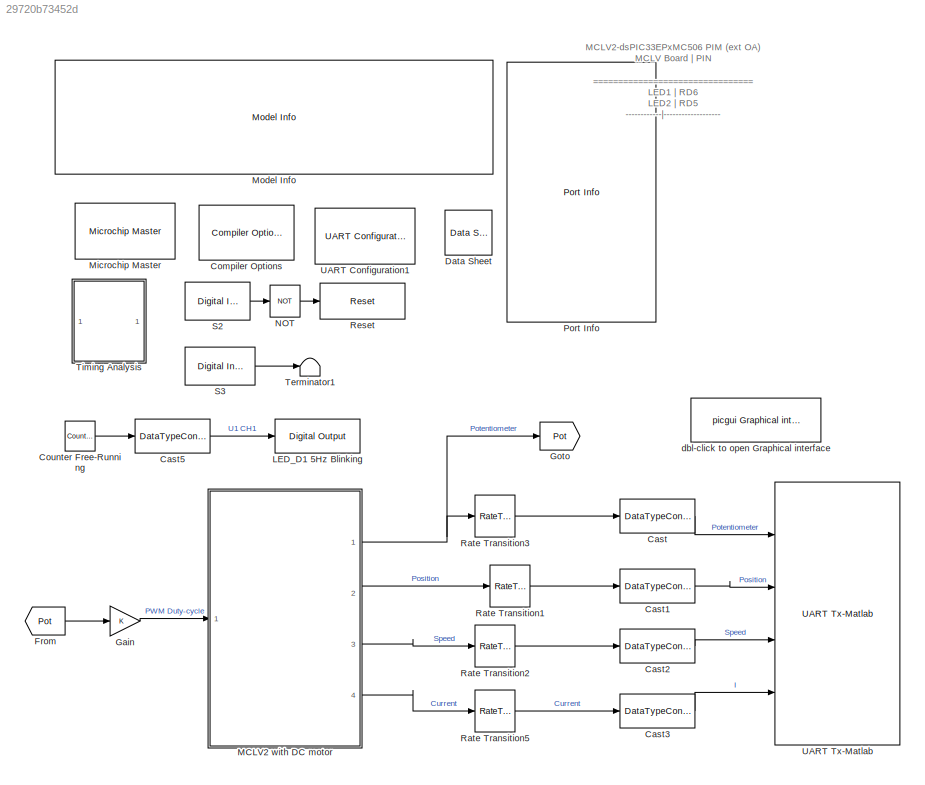
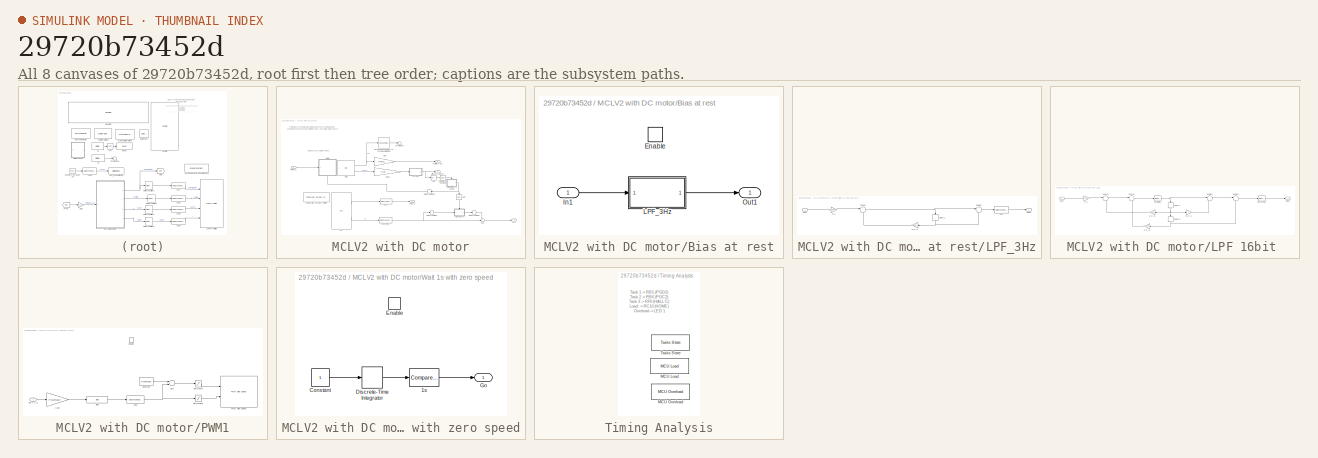
[diagram: thumbnail index - all 8 canvases of the model, root first then tree order]
MODEL slx_29720b73452d
KIND model
CONFIG AbsTol = auto
CONFIG EnableMultiTasking = on
CONFIG FixedStep = 50e-6
CONFIG MaxStep = auto
CONFIG MinStep = auto
CONFIG RelTol = 1e-3
CONFIG SampleTimeConstraint = Unconstrained
CONFIG Solver = FixedStepDiscrete
CONFIG SolverName = FixedStepDiscrete
CONFIG StartTime = 0.0
CONFIG StopTime = inf
BLOCK [DataTypeConversion] Cast
  OutDataTypeStr = single
  RndMeth = Floor
  SaturateOnIntegerOverflow = off
BLOCK [DataTypeConversion] Cast1
  OutDataTypeStr = single
  RndMeth = Floor
  SaturateOnIntegerOverflow = off
BLOCK [DataTypeConversion] Cast2
  OutDataTypeStr = single
  RndMeth = Floor
  SaturateOnIntegerOverflow = off
BLOCK [DataTypeConversion] Cast3
  OutDataTypeStr = single
  RndMeth = Floor
  SaturateOnIntegerOverflow = off
BLOCK [DataTypeConversion] Cast5
  OutDataTypeStr = boolean
  RndMeth = Floor
  SaturateOnIntegerOverflow = off
BLOCK [Reference] Compiler Options  REF=MCHP_Blockset/System Configuration/Compiler Options
  Ports = []
  Priority = 1
  SourceBlock = MCHP_Blockset/System Configuration/Compiler Options
  SourceProductName = MPLAB Device Blocks for Simulink
BLOCK [Reference] Counter Free-Running  REF=simulink/Sources/Counter
Free-Running
  Ports = [0, 1]
  SourceBlock = simulink/Sources/Counter\nFree-Running
  SourceProductBaseCode = SL
  SourceProductName = Simulink
  SourceType = Counter Free-Running
BLOCK [Reference] Data Sheet  REF=MCHP_Blockset/System Info/Data Sheet
  AttributesFormatString = %<cpy_MCHP_Id>
  Ports = []
  SourceBlock = MCHP_Blockset/System Info/Data Sheet
  SourceProductName = MPLAB Device Blocks for Simulink
BLOCK [From] From
  GotoTag = Pot
BLOCK [Gain] Gain
  ParamDataTypeStr = Inherit: Inherit via internal rule
BLOCK [Goto] Goto
  GotoTag = Pot
BLOCK [Reference] LED_D1 5Hz Blinking  REF=MCHP_Blockset/Digital IO/Digital Output
  Ports = [1]
  SourceBlock = MCHP_Blockset/Digital IO/Digital Output
  SourceProductName = MPLAB Device Blocks for Simulink
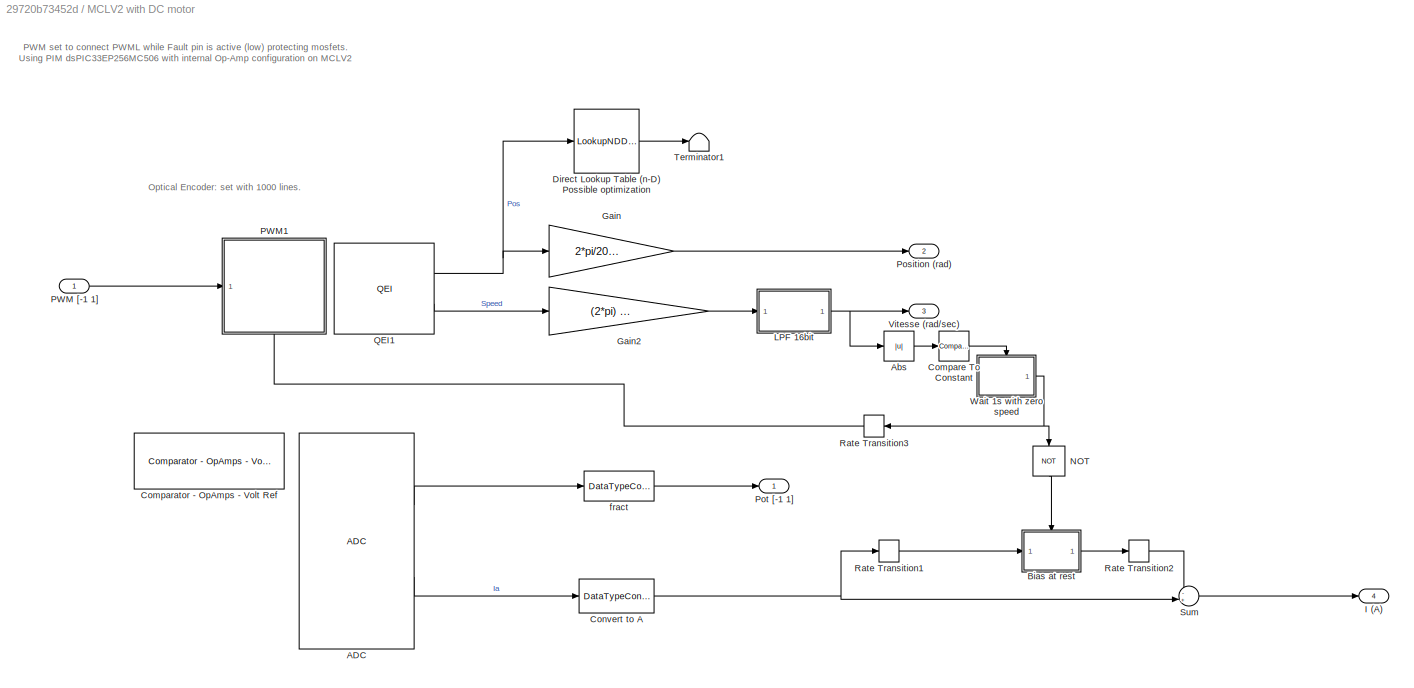
BLOCK [SubSystem] MCLV2 with DC motor
  Ports = [1, 4]
  RequestExecContextInheritance = off
BLOCK [Reference] MCLV2 with DC motor/ADC  REF=MCHP_Blockset/Analog IO/ADC
  Ports = [0, 2]
  Priority = 5
  SourceBlock = MCHP_Blockset/Analog IO/ADC
  SourceProductName = MPLAB Device Blocks for Simulink
BLOCK [Abs] MCLV2 with DC motor/Abs
  SaturateOnIntegerOverflow = off
BLOCK [SubSystem] MCLV2 with DC motor/Bias at rest
  Ports = [1, 1, 1]
  RequestExecContextInheritance = off
  TreatAsAtomicUnit = on
BLOCK [EnablePort] MCLV2 with DC motor/Bias at rest/Enable
  Ports = []
BLOCK [Inport] MCLV2 with DC motor/Bias at rest/In1
  IconDisplay = Port number
BLOCK [SubSystem] MCLV2 with DC motor/Bias at rest/LPF_3Hz
  ErrorFcn = dspFilterRealizedInBasicElemsAlgLoopErrFcnCallback
  Ports = [1, 1]
  RequestExecContextInheritance = off
  Tag = FilterWizardSubSystem
  UserDataPersistent = on
BLOCK [DataTypeConversion] MCLV2 with DC motor/Bias at rest/LPF_3Hz/Cast
  RndMeth = Floor
  SaturateOnIntegerOverflow = off
BLOCK [Delay] MCLV2 with DC motor/Bias at rest/LPF_3Hz/Delay11
  DelayLength = 1
  InitialCondition = 0
  InputPortMap = u0
  Ports = [1, 1]
BLOCK [Inport] MCLV2 with DC motor/Bias at rest/LPF_3Hz/Input
  IconDisplay = Port number
BLOCK [Outport] MCLV2 with DC motor/Bias at rest/LPF_3Hz/Output
  IconDisplay = Port number
BLOCK [Sum] MCLV2 with DC motor/Bias at rest/LPF_3Hz/SumA21
  AccumDataTypeStr = Inherit: Same as first input
  IconShape = round
  InputSameDT = off
  Inputs = |+-
  Ports = [2, 1]
  RndMeth = Convergent
BLOCK [Sum] MCLV2 with DC motor/Bias at rest/LPF_3Hz/SumB21
  AccumDataTypeStr = Inherit: Same as first input
  IconShape = round
  InputSameDT = off
  Inputs = |++
  Ports = [2, 1]
  RndMeth = Simplest
BLOCK [Gain] MCLV2 with DC motor/Bias at rest/LPF_3Hz/a(2)(1)
  Gain = -0.962994050950215286
  ParamDataTypeStr = fixdt(1,16,14)
  RndMeth = Simplest
  SaturateOnIntegerOverflow = off
BLOCK [Gain] MCLV2 with DC motor/Bias at rest/LPF_3Hz/s(1)
  Gain = 0.0185029745248923086
  OutDataTypeStr = fixdt(1,16,16)
  ParamDataTypeStr = fixdt(1,16,20)
  RndMeth = Convergent
BLOCK [Outport] MCLV2 with DC motor/Bias at rest/Out1
  IconDisplay = Port number
  InitialOutput = 0
BLOCK [Reference] MCLV2 with DC motor/Comparator - OpAmps - Volt Ref  REF=MCHP_Blockset/Analog IO/Comparator - OpAmps - Volt Ref
  Ports = []
  SourceBlock = MCHP_Blockset/Analog IO/Comparator - OpAmps - Volt Ref
  SourceProductName = MPLAB Device Blocks for Simulink
  SourceType = Comparator / Op amp (DS70357 & DS70648)
  UserDataPersistent = on
BLOCK [Reference] MCLV2 with DC motor/Compare To Constant  REF=simulink/Logic and Bit
Operations/Compare
To Constant
  Ports = [1, 1]
  SourceBlock = simulink/Logic and Bit\nOperations/Compare\nTo Constant
  SourceProductBaseCode = SL
  SourceProductName = Simulink
  SourceType = Compare To Constant
BLOCK [DataTypeConversion] MCLV2 with DC motor/Convert to A
  ConvertRealWorld = Stored Integer (SI)
  OutDataTypeStr = fixdt(1,16,4.4/32768,0)
  RndMeth = Floor
  SaturateOnIntegerOverflow = off
BLOCK [LookupNDDirect] MCLV2 with DC motor/Direct Lookup Table (n-D) Possible optimization
  LockScale = on
  NumberOfTableDimensions = 1
  Ports = [1, 1]
  Table = [0:(1000-1)]*2*pi/1000
  TableDataTypeStr = fixdt(1,16,5)
BLOCK [Gain] MCLV2 with DC motor/Gain
  Gain = 2*pi/2000
  OutDataTypeStr = fixdt(1,16,5)
  ParamDataTypeStr = Inherit: Inherit via internal rule
  SaturateOnIntegerOverflow = off
BLOCK [Gain] MCLV2 with DC motor/Gain2
  Gain = (2*pi) / 2000 / 0.002
  LockScale = on
  OutDataTypeStr = fixdt(1,16,5)
  ParamDataTypeStr = Inherit: Inherit via internal rule
  SaturateOnIntegerOverflow = off
BLOCK [Outport] MCLV2 with DC motor/I (A)
  IconDisplay = Port number
  Port = 4
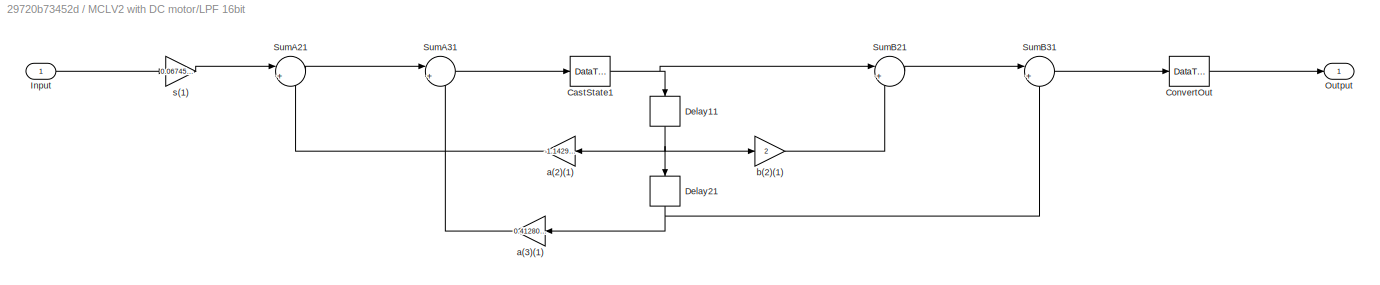
BLOCK [SubSystem] MCLV2 with DC motor/LPF 16bit 
  ErrorFcn = dspFilterRealizedInBasicElemsAlgLoopErrFcnCallback
  Ports = [1, 1]
  RequestExecContextInheritance = off
  Tag = FilterWizardSubSystem
  UserDataPersistent = on
BLOCK [DataTypeConversion] MCLV2 with DC motor/LPF 16bit /CastState1
  OutDataTypeStr = fixdt(1,16,6)
  RndMeth = Floor
  SaturateOnIntegerOverflow = off
BLOCK [DataTypeConversion] MCLV2 with DC motor/LPF 16bit /ConvertOut
  OutDataTypeStr = fixdt(1,16,4)
  RndMeth = Floor
  SaturateOnIntegerOverflow = off
BLOCK [Delay] MCLV2 with DC motor/LPF 16bit /Delay11
  DelayLength = 1
  InitialCondition = 0
  InputPortMap = u0
  Ports = [1, 1]
BLOCK [Delay] MCLV2 with DC motor/LPF 16bit /Delay21
  DelayLength = 1
  InitialCondition = 0
  InputPortMap = u0
  Ports = [1, 1]
BLOCK [Inport] MCLV2 with DC motor/LPF 16bit /Input
  IconDisplay = Port number
BLOCK [Outport] MCLV2 with DC motor/LPF 16bit /Output
  IconDisplay = Port number
BLOCK [Sum] MCLV2 with DC motor/LPF 16bit /SumA21
  AccumDataTypeStr = fixdt(1,16,6)
  IconShape = round
  InputSameDT = off
  Inputs = |+-
  OutDataTypeStr = fixdt(1,16,6)
  Ports = [2, 1]
  SaturateOnIntegerOverflow = off
BLOCK [Sum] MCLV2 with DC motor/LPF 16bit /SumA31
  AccumDataTypeStr = fixdt(1,16,6)
  IconShape = round
  InputSameDT = off
  Inputs = |+-
  OutDataTypeStr = fixdt(1,16,6)
  Ports = [2, 1]
  SaturateOnIntegerOverflow = off
BLOCK [Sum] MCLV2 with DC motor/LPF 16bit /SumB21
  AccumDataTypeStr = fixdt(1,16,5)
  IconShape = round
  InputSameDT = off
  Inputs = |++
  OutDataTypeStr = fixdt(1,16,5)
  Ports = [2, 1]
  SaturateOnIntegerOverflow = off
BLOCK [Sum] MCLV2 with DC motor/LPF 16bit /SumB31
  AccumDataTypeStr = fixdt(1,16,4)
  IconShape = round
  InputSameDT = off
  Inputs = |++
  OutDataTypeStr = fixdt(1,16,4)
  Ports = [2, 1]
  SaturateOnIntegerOverflow = off
BLOCK [Gain] MCLV2 with DC motor/LPF 16bit /a(2)(1)
  Gain = -1.14298050253990113
  OutDataTypeStr = fixdt(1,16,6)
  ParamDataTypeStr = fixdt(1,16,14)
  SaturateOnIntegerOverflow = off
BLOCK [Gain] MCLV2 with DC motor/LPF 16bit /a(3)(1)
  Gain = 0.412801598096188771
  OutDataTypeStr = fixdt(1,16,8)
  ParamDataTypeStr = fixdt(0,16,17)
  SaturateOnIntegerOverflow = off
BLOCK [Gain] MCLV2 with DC motor/LPF 16bit /b(2)(1)
  Gain = 2
  OutDataTypeStr = fixdt(1,16,5)
  ParamDataTypeStr = fixdt(0,16,14)
  SaturateOnIntegerOverflow = off
BLOCK [Gain] MCLV2 with DC motor/LPF 16bit /s(1)
  Gain = 0.0674552738890718956
  OutDataTypeStr = fixdt(1,16,8)
  ParamDataTypeStr = fixdt(0,16,19)
  SaturateOnIntegerOverflow = off
BLOCK [Logic] MCLV2 with DC motor/NOT
  AllPortsSameDT = off
  IconShape = distinctive
  Operator = NOT
  OutDataTypeStr = boolean
  Ports = [1, 1]
BLOCK [Inport] MCLV2 with DC motor/PWM [-1 1]
  IconDisplay = Port number
BLOCK [SubSystem] MCLV2 with DC motor/PWM1
  Ports = [1, 0, 1]
  RequestExecContextInheritance = off
BLOCK [Bias] MCLV2 with DC motor/PWM1/Bias
  Bias = PWMmax/2
  SaturateOnIntegerOverflow = off
BLOCK [DataTypeConversion] MCLV2 with DC motor/PWM1/Cast
  OutDataTypeStr = uint16
  RndMeth = Floor
  SaturateOnIntegerOverflow = off
BLOCK [Constant] MCLV2 with DC motor/PWM1/Constant
  OutDataTypeStr = uint16
  Value = PWMmax
BLOCK [EnablePort] MCLV2 with DC motor/PWM1/Enable
  Ports = []
BLOCK [Gain] MCLV2 with DC motor/PWM1/Gain
  Gain = PWMmax/2
  OutDataTypeStr = fixdt(1,32,1)
  ParamDataTypeStr = Inherit: Inherit via internal rule
  SaturateOnIntegerOverflow = off
BLOCK [Reference] MCLV2 with DC motor/PWM1/PWM High Speed  REF=MCHP_Blockset/PWM IO/PWM High Speed
  Ports = [2]
  SourceBlock = MCHP_Blockset/PWM IO/PWM High Speed
  SourceProductName = MPLAB Device Blocks for Simulink
  UserDataPersistent = on
BLOCK [Saturate] MCLV2 with DC motor/PWM1/Saturation
  InputPortMap = u0
  LowerLimit = round( (0.5e-6/50e-6) *PWMmax )
  Ports = [1, 1]
  UpperLimit = PWMmax - (1e-6/50e-6)*PWMmax
BLOCK [Saturate] MCLV2 with DC motor/PWM1/Saturation1
  InputPortMap = u0
  LowerLimit = round( (0.5e-6/50e-6) *PWMmax )
  Ports = [1, 1]
  UpperLimit = PWMmax
BLOCK [Sum] MCLV2 with DC motor/PWM1/Sum
  AccumDataTypeStr = Inherit: Same as first input
  InputSameDT = off
  Inputs = +-
  Ports = [2, 1]
  SaturateOnIntegerOverflow = off
BLOCK [Inport] MCLV2 with DC motor/PWM1/Vdc [-1 1]
  IconDisplay = Port number
BLOCK [Outport] MCLV2 with DC motor/Position (rad)
  IconDisplay = Port number
  Port = 2
BLOCK [Outport] MCLV2 with DC motor/Pot [-1 1]
  IconDisplay = Port number
BLOCK [Reference] MCLV2 with DC motor/QEI1  REF=MCHP_Blockset/QEI/QEI
  Ports = [0, 2]
  SourceBlock = MCHP_Blockset/QEI/QEI
  SourceProductName = MPLAB Device Blocks for Simulink
  SourceType = Output Driver for Quadrature Encoder Interface (QEI) peripheral
  UserDataPersistent = on
BLOCK [RateTransition] MCLV2 with DC motor/Rate Transition1
  Deterministic = off
  OutPortSampleTime = .002
BLOCK [RateTransition] MCLV2 with DC motor/Rate Transition2
  Deterministic = off
BLOCK [RateTransition] MCLV2 with DC motor/Rate Transition3
  Deterministic = off
BLOCK [Sum] MCLV2 with DC motor/Sum
  IconShape = round
  Inputs = -+|
  OutDataTypeStr = Inherit: Inherit via back propagation
  Ports = [2, 1]
BLOCK [Terminator] MCLV2 with DC motor/Terminator1
BLOCK [Outport] MCLV2 with DC motor/Vitesse (rad//sec)
  IconDisplay = Port number
  Port = 3
BLOCK [SubSystem] MCLV2 with DC motor/Wait 1s with zero speed
  Ports = [0, 1, 1]
  RequestExecContextInheritance = off
  TreatAsAtomicUnit = on
BLOCK [Reference] MCLV2 with DC motor/Wait 1s with zero speed/1s   REF=simulink/Logic and Bit
Operations/Compare
To Constant
  Ports = [1, 1]
  SourceBlock = simulink/Logic and Bit\nOperations/Compare\nTo Constant
  SourceProductBaseCode = SL
  SourceProductName = Simulink
  SourceType = Compare To Constant
BLOCK [Constant] MCLV2 with DC motor/Wait 1s with zero speed/Constant
  OutDataTypeStr = Inherit: Inherit via back propagation
BLOCK [DiscreteIntegrator] MCLV2 with DC motor/Wait 1s with zero speed/Discrete-Time Integrator
  ICPrevOutput = DiscIntNeverNeededParam
  ICPrevScaledInput = DiscIntNeverNeededParam
  InitialConditionSetting = Auto
  IntegratorMethod = Accumulation: Forward Euler
  OutDataTypeStr = uint16
  Ports = [1, 1]
  SampleTime = -1
  SaturateOnIntegerOverflow = on
  gainval = 1
BLOCK [EnablePort] MCLV2 with DC motor/Wait 1s with zero speed/Enable
  Ports = []
BLOCK [Outport] MCLV2 with DC motor/Wait 1s with zero speed/Go
  IconDisplay = Port number
  InitialOutput = 0
BLOCK [DataTypeConversion] MCLV2 with DC motor/fract
  ConvertRealWorld = Stored Integer (SI)
  OutDataTypeStr = fixdt(1,16,15)
  RndMeth = Floor
  SaturateOnIntegerOverflow = off
BLOCK [Reference] Microchip Master  REF=MCHP_Blockset/System Configuration/Microchip Master
  Ports = []
  Priority = 1
  SourceBlock = MCHP_Blockset/System Configuration/Microchip Master
  SourceProductName = MPLAB Device Blocks for Simulink
BLOCK [Reference] Model Info  REF=simulink/Model-Wide
Utilities/Model Info
  Ports = []
  SourceBlock = simulink/Model-Wide\nUtilities/Model Info
  SourceProductBaseCode = SL
  SourceProductName = Simulink
  SourceType = CMBlock
BLOCK [Logic] NOT
  AllPortsSameDT = off
  IconShape = distinctive
  Operator = NOT
  OutDataTypeStr = boolean
  Ports = [1, 1]
BLOCK [Reference] Port Info  REF=MCHP_Blockset/System Info/Port Info
  Ports = []
  SourceBlock = MCHP_Blockset/System Info/Port Info
  SourceProductName = MPLAB Device Blocks for Simulink
BLOCK [RateTransition] Rate Transition1
  Deterministic = off
  OutPortSampleTime = .01
BLOCK [RateTransition] Rate Transition2
  Deterministic = off
  OutPortSampleTime = .01
BLOCK [RateTransition] Rate Transition3
  Deterministic = off
  OutPortSampleTime = .01
BLOCK [RateTransition] Rate Transition5
  Deterministic = off
  OutPortSampleTime = .01
BLOCK [Reference] Reset  REF=MCHP_Blockset/System Functions/Reset
  Ports = [1]
  SourceBlock = MCHP_Blockset/System Functions/Reset
  SourceProductName = MPLAB Device Blocks for Simulink
  SourceType = UART Reset
BLOCK [Reference] S2  REF=MCHP_Blockset/Digital IO/Digital Input
  Ports = [0, 1]
  SourceBlock = MCHP_Blockset/Digital IO/Digital Input
  SourceProductName = MPLAB Device Blocks for Simulink
  SourceType = Input driver for Digital Input Pins
BLOCK [Reference] S3  REF=MCHP_Blockset/Digital IO/Digital Input
  Ports = [0, 1]
  SourceBlock = MCHP_Blockset/Digital IO/Digital Input
  SourceProductName = MPLAB Device Blocks for Simulink
  SourceType = Input driver for Digital Input Pins
BLOCK [Terminator] Terminator1
BLOCK [SubSystem] Timing Analysis
  Ports = []
  RequestExecContextInheritance = off
BLOCK [Reference] Timing Analysis/MCU Load  REF=MCHP_Blockset/Profiling/MCU Load
  Ports = []
  SourceBlock = MCHP_Blockset/Profiling/MCU Load
  SourceProductName = MPLAB Device Blocks for Simulink
  SourceType = MCU Load (Profile execution time)
BLOCK [Reference] Timing Analysis/MCU Overload  REF=MCHP_Blockset/Profiling/MCU Overload
  Ports = []
  SourceBlock = MCHP_Blockset/Profiling/MCU Overload
  SourceProductName = MPLAB Device Blocks for Simulink
  SourceType = MCU Over-Load (Profile execution time)
BLOCK [Reference] Timing Analysis/Tasks State  REF=MCHP_Blockset/Profiling/Tasks State
  Ports = []
  SourceBlock = MCHP_Blockset/Profiling/Tasks State
  SourceProductName = MPLAB Device Blocks for Simulink
  SourceType = MCU Over-Load (Profile execution time)
BLOCK [Reference] UART Configuration1  REF=MCHP_Blockset/BUS UART/UART Configuration
  Ports = []
  SourceBlock = MCHP_Blockset/BUS UART/UART Configuration
  SourceProductName = MPLAB Device Blocks for Simulink
  SourceType = Configuration for UART peripheral
BLOCK [Reference] UART Tx-Matlab  REF=MCHP_Blockset/BUS UART/UART Tx-Matlab
  Ports = [4]
  SourceBlock = MCHP_Blockset/BUS UART/UART Tx-Matlab
  SourceProductName = MPLAB Device Blocks for Simulink
  SourceType = Higl Level UART protocol
BLOCK [Reference] dbl-click to open Graphical interface  REF=MCHP_Blockset/BUS UART/picgui
Graphical interface
  Ports = []
  SourceBlock = MCHP_Blockset/BUS UART/picgui\nGraphical interface
  SourceProductName = MPLAB Device Blocks for Simulink
ANNOTATION (root): MCLV2-dsPIC33EPxMC506 PIM (ext OA) MCLV Board | PIN ================================ LED1 | RD6 LED2 | RD5 ------------|------------------- SW1 | RG6 SW2 | RC7 ------------|------------------- UART_Rx | RC5 UART_Tx | RF1 ------------|------------------- PWM1 (L/H) | RB15 - RB14 PWM2 (L/H) | RB13 - RB12 PWM3 (L/H) | RB11 - RB10 ------------|------------------- MC_FAULT | RB4 (FLT32) ------------|--...<+278ch>
ANNOTATION MCLV2 with DC motor: Optical Encoder: set with 1000 lines.
ANNOTATION MCLV2 with DC motor: PWM set to connect PWML while Fault pin is active (low) protecting mosfets. Using PIM dsPIC33EP256MC506 with internal Op-Amp configuration on MCLV2
ANNOTATION Timing Analysis: Task 1 -> RB5 (PGD2) Task 2 -> RB6 (PGC2) Task 3 -> RF0 (HALL C) Load: -> RC10 (HOME) Overload -> LED 1
LINE Cast1:1 -> UART Tx-Matlab:2
LINE Cast2:1 -> UART Tx-Matlab:3
LINE Cast3:1 -> UART Tx-Matlab:4
LINE Cast5:1 -> LED_D1 5Hz Blinking:1
LINE Cast:1 -> UART Tx-Matlab:1
LINE Counter Free-Running:1 -> Cast5:1
LINE From:1 -> Gain:1
LINE Gain:1 -> MCLV2 with DC motor:1
LINE MCLV2 with DC motor/ADC:1 -> MCLV2 with DC motor/fract:1
LINE MCLV2 with DC motor/ADC:2 -> MCLV2 with DC motor/Convert to A:1
LINE MCLV2 with DC motor/Abs:1 -> MCLV2 with DC motor/Compare To Constant:1
LINE MCLV2 with DC motor/Bias at rest/In1:1 -> MCLV2 with DC motor/Bias at rest/LPF_3Hz:1
LINE MCLV2 with DC motor/Bias at rest/LPF_3Hz/Cast:1 -> MCLV2 with DC motor/Bias at rest/LPF_3Hz/Output:1
NET MCLV2 with DC motor/Bias at rest/LPF_3Hz/Delay11:1 -> MCLV2 with DC motor/Bias at rest/LPF_3Hz/SumB21:2, MCLV2 with DC motor/Bias at rest/LPF_3Hz/a(2)(1):1
LINE MCLV2 with DC motor/Bias at rest/LPF_3Hz/Input:1 -> MCLV2 with DC motor/Bias at rest/LPF_3Hz/s(1):1
NET MCLV2 with DC motor/Bias at rest/LPF_3Hz/SumA21:1 -> MCLV2 with DC motor/Bias at rest/LPF_3Hz/Delay11:1, MCLV2 with DC motor/Bias at rest/LPF_3Hz/SumB21:1
LINE MCLV2 with DC motor/Bias at rest/LPF_3Hz/SumB21:1 -> MCLV2 with DC motor/Bias at rest/LPF_3Hz/Cast:1
LINE MCLV2 with DC motor/Bias at rest/LPF_3Hz/a(2)(1):1 -> MCLV2 with DC motor/Bias at rest/LPF_3Hz/SumA21:2
LINE MCLV2 with DC motor/Bias at rest/LPF_3Hz/s(1):1 -> MCLV2 with DC motor/Bias at rest/LPF_3Hz/SumA21:1
LINE MCLV2 with DC motor/Bias at rest/LPF_3Hz:1 -> MCLV2 with DC motor/Bias at rest/Out1:1
LINE MCLV2 with DC motor/Bias at rest:1 -> MCLV2 with DC motor/Rate Transition2:1
LINE MCLV2 with DC motor/Compare To Constant:1 -> MCLV2 with DC motor/Wait 1s with zero speed:enable
NET MCLV2 with DC motor/Convert to A:1 -> MCLV2 with DC motor/Rate Transition1:1, MCLV2 with DC motor/Sum:2
LINE MCLV2 with DC motor/Direct Lookup Table (n-D) Possible optimization:1 -> MCLV2 with DC motor/Terminator1:1
LINE MCLV2 with DC motor/Gain2:1 -> MCLV2 with DC motor/LPF 16bit :1
LINE MCLV2 with DC motor/Gain:1 -> MCLV2 with DC motor/Position (rad):1
NET MCLV2 with DC motor/LPF 16bit /CastState1:1 -> MCLV2 with DC motor/LPF 16bit /Delay11:1, MCLV2 with DC motor/LPF 16bit /SumB21:1
LINE MCLV2 with DC motor/LPF 16bit /ConvertOut:1 -> MCLV2 with DC motor/LPF 16bit /Output:1
NET MCLV2 with DC motor/LPF 16bit /Delay11:1 -> MCLV2 with DC motor/LPF 16bit /Delay21:1, MCLV2 with DC motor/LPF 16bit /a(2)(1):1, MCLV2 with DC motor/LPF 16bit /b(2)(1):1
NET MCLV2 with DC motor/LPF 16bit /Delay21:1 -> MCLV2 with DC motor/LPF 16bit /SumB31:2, MCLV2 with DC motor/LPF 16bit /a(3)(1):1
LINE MCLV2 with DC motor/LPF 16bit /Input:1 -> MCLV2 with DC motor/LPF 16bit /s(1):1
LINE MCLV2 with DC motor/LPF 16bit /SumA21:1 -> MCLV2 with DC motor/LPF 16bit /SumA31:1
LINE MCLV2 with DC motor/LPF 16bit /SumA31:1 -> MCLV2 with DC motor/LPF 16bit /CastState1:1
LINE MCLV2 with DC motor/LPF 16bit /SumB21:1 -> MCLV2 with DC motor/LPF 16bit /SumB31:1
LINE MCLV2 with DC motor/LPF 16bit /SumB31:1 -> MCLV2 with DC motor/LPF 16bit /ConvertOut:1
LINE MCLV2 with DC motor/LPF 16bit /a(2)(1):1 -> MCLV2 with DC motor/LPF 16bit /SumA21:2
LINE MCLV2 with DC motor/LPF 16bit /a(3)(1):1 -> MCLV2 with DC motor/LPF 16bit /SumA31:2
LINE MCLV2 with DC motor/LPF 16bit /b(2)(1):1 -> MCLV2 with DC motor/LPF 16bit /SumB21:2
LINE MCLV2 with DC motor/LPF 16bit /s(1):1 -> MCLV2 with DC motor/LPF 16bit /SumA21:1
NET MCLV2 with DC motor/LPF 16bit :1 -> MCLV2 with DC motor/Abs:1, MCLV2 with DC motor/Vitesse (rad//sec):1
LINE MCLV2 with DC motor/NOT:1 -> MCLV2 with DC motor/Bias at rest:enable
LINE MCLV2 with DC motor/PWM [-1 1]:1 -> MCLV2 with DC motor/PWM1:1
LINE MCLV2 with DC motor/PWM1/Bias:1 -> MCLV2 with DC motor/PWM1/Cast:1
NET MCLV2 with DC motor/PWM1/Cast:1 -> MCLV2 with DC motor/PWM1/Saturation1:1, MCLV2 with DC motor/PWM1/Sum:2
LINE MCLV2 with DC motor/PWM1/Constant:1 -> MCLV2 with DC motor/PWM1/Sum:1
LINE MCLV2 with DC motor/PWM1/Gain:1 -> MCLV2 with DC motor/PWM1/Bias:1
LINE MCLV2 with DC motor/PWM1/Saturation1:1 -> MCLV2 with DC motor/PWM1/PWM High Speed:2
LINE MCLV2 with DC motor/PWM1/Saturation:1 -> MCLV2 with DC motor/PWM1/PWM High Speed:1
LINE MCLV2 with DC motor/PWM1/Sum:1 -> MCLV2 with DC motor/PWM1/Saturation:1
LINE MCLV2 with DC motor/PWM1/Vdc [-1 1]:1 -> MCLV2 with DC motor/PWM1/Gain:1
NET MCLV2 with DC motor/QEI1:1 -> MCLV2 with DC motor/Direct Lookup Table (n-D) Possible optimization:1, MCLV2 with DC motor/Gain:1
LINE MCLV2 with DC motor/QEI1:2 -> MCLV2 with DC motor/Gain2:1
LINE MCLV2 with DC motor/Rate Transition1:1 -> MCLV2 with DC motor/Bias at rest:1
LINE MCLV2 with DC motor/Rate Transition2:1 -> MCLV2 with DC motor/Sum:1
LINE MCLV2 with DC motor/Rate Transition3:1 -> MCLV2 with DC motor/PWM1:enable
LINE MCLV2 with DC motor/Sum:1 -> MCLV2 with DC motor/I (A):1
LINE MCLV2 with DC motor/Wait 1s with zero speed/1s :1 -> MCLV2 with DC motor/Wait 1s with zero speed/Go:1
LINE MCLV2 with DC motor/Wait 1s with zero speed/Constant:1 -> MCLV2 with DC motor/Wait 1s with zero speed/Discrete-Time Integrator:1
LINE MCLV2 with DC motor/Wait 1s with zero speed/Discrete-Time Integrator:1 -> MCLV2 with DC motor/Wait 1s with zero speed/1s :1
NET MCLV2 with DC motor/Wait 1s with zero speed:1 -> MCLV2 with DC motor/NOT:1, MCLV2 with DC motor/Rate Transition3:1
LINE MCLV2 with DC motor/fract:1 -> MCLV2 with DC motor/Pot [-1 1]:1
NET MCLV2 with DC motor:1 -> Goto:1, Rate Transition3:1
LINE MCLV2 with DC motor:2 -> Rate Transition1:1
LINE MCLV2 with DC motor:3 -> Rate Transition2:1
LINE MCLV2 with DC motor:4 -> Rate Transition5:1
LINE NOT:1 -> Reset:1
LINE Rate Transition1:1 -> Cast1:1
LINE Rate Transition2:1 -> Cast2:1
LINE Rate Transition3:1 -> Cast:1
LINE Rate Transition5:1 -> Cast3:1
LINE S2:1 -> NOT:1
LINE S3:1 -> Terminator1:1
note: NET lines group one-source signal fan-out (src -> all destinations, sorted); 1:1 wires keep LINE
